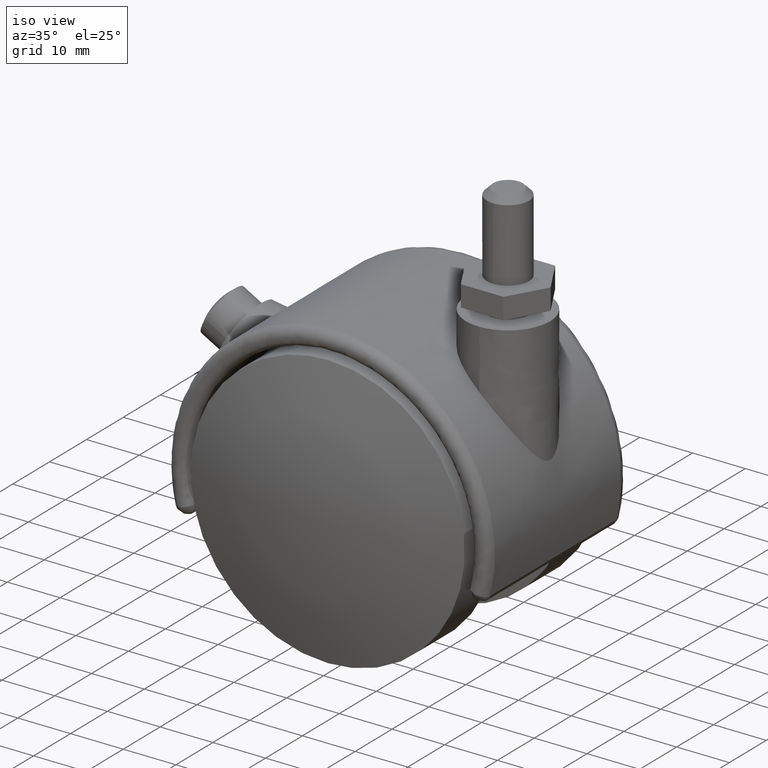
[diagram: clean part render]
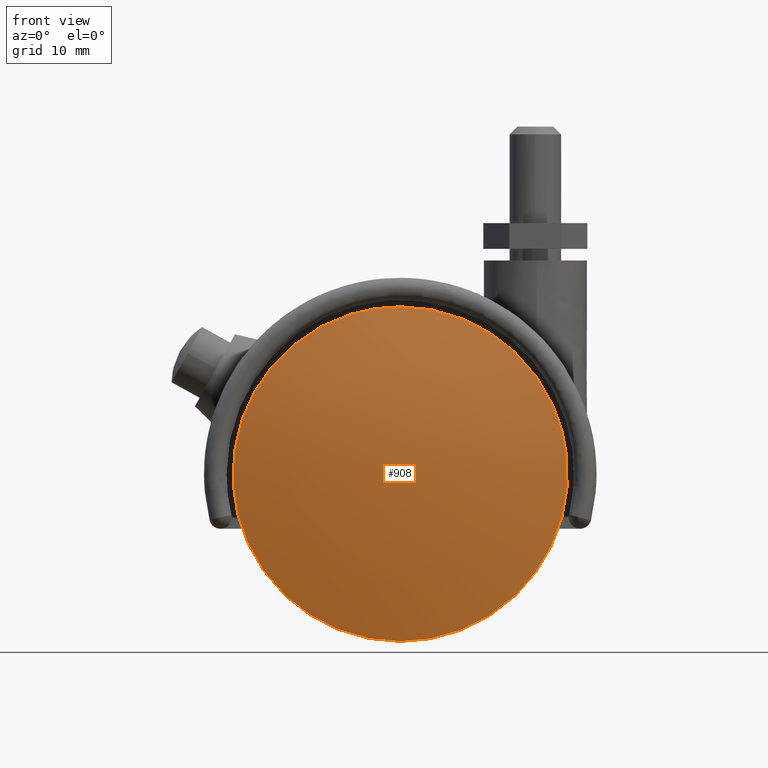
[diagram: tour spotlight — one face highlighted and labeled with its STEP entity id]
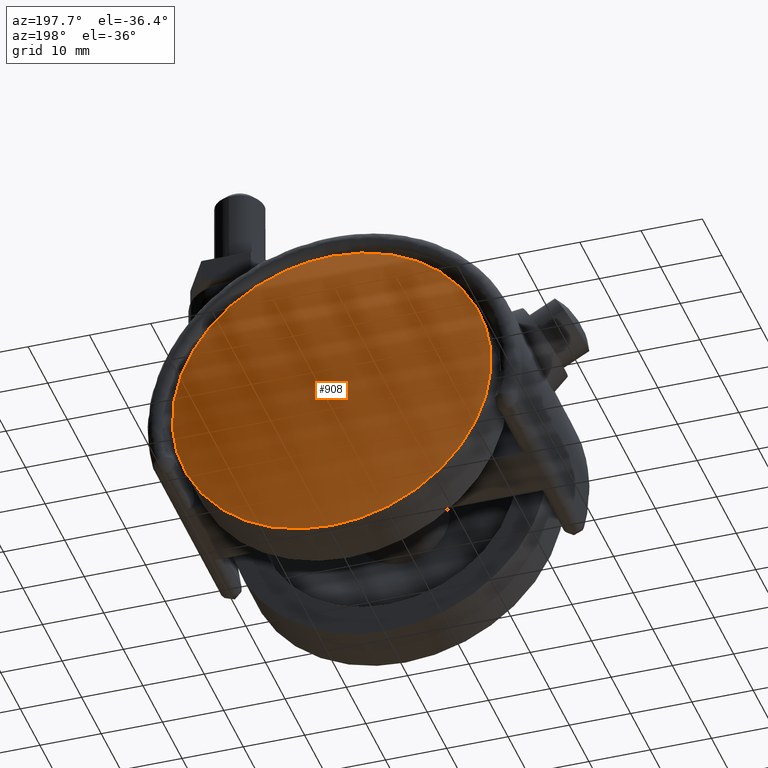
[diagram: tour spotlight — one face highlighted and labeled with its STEP entity id]
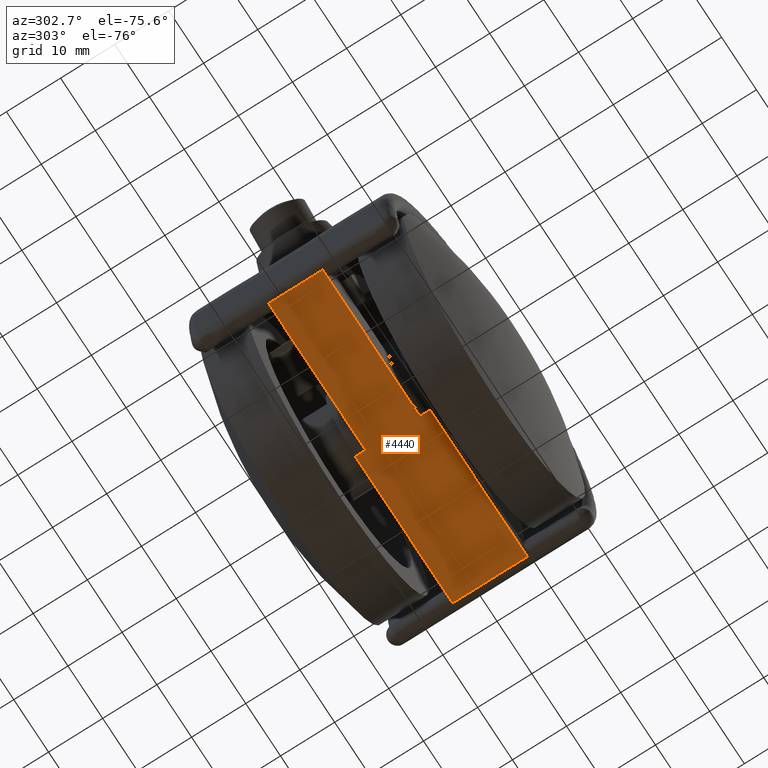
[diagram: tour spotlight — one face highlighted and labeled with its STEP entity id]
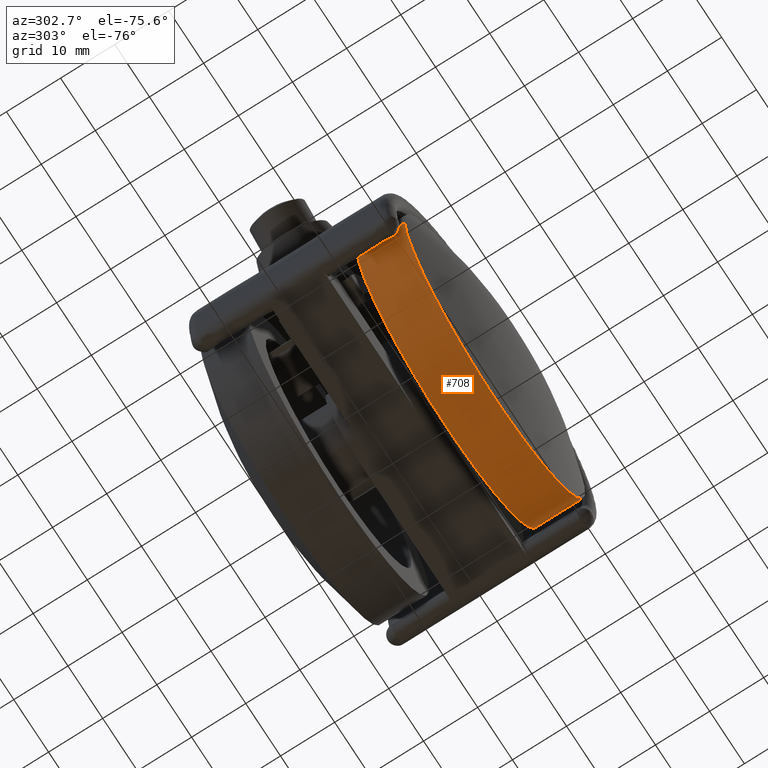
[diagram: tour spotlight — one face highlighted and labeled with its STEP entity id]
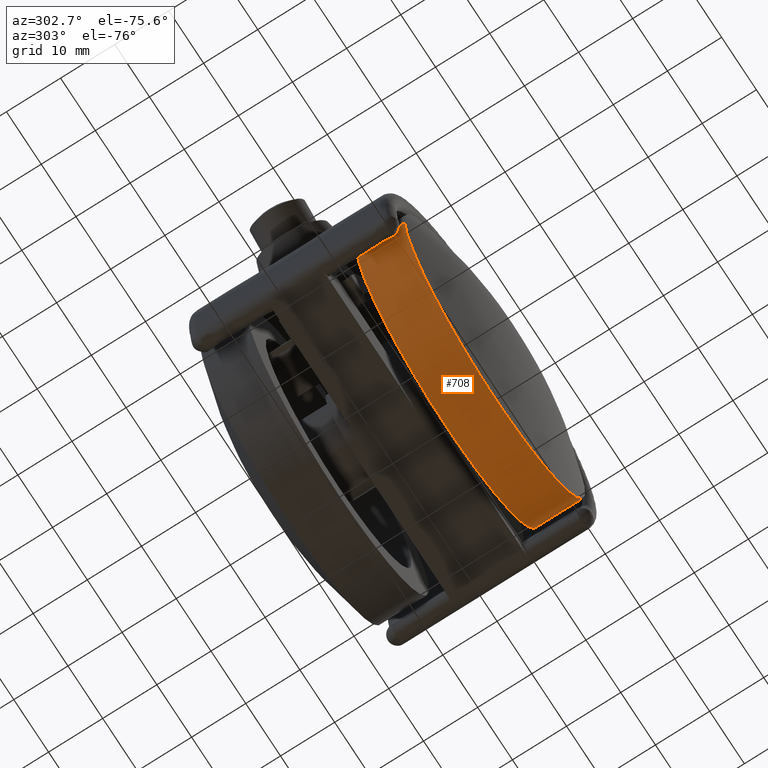
[diagram: tour spotlight — one face highlighted and labeled with its STEP entity id]
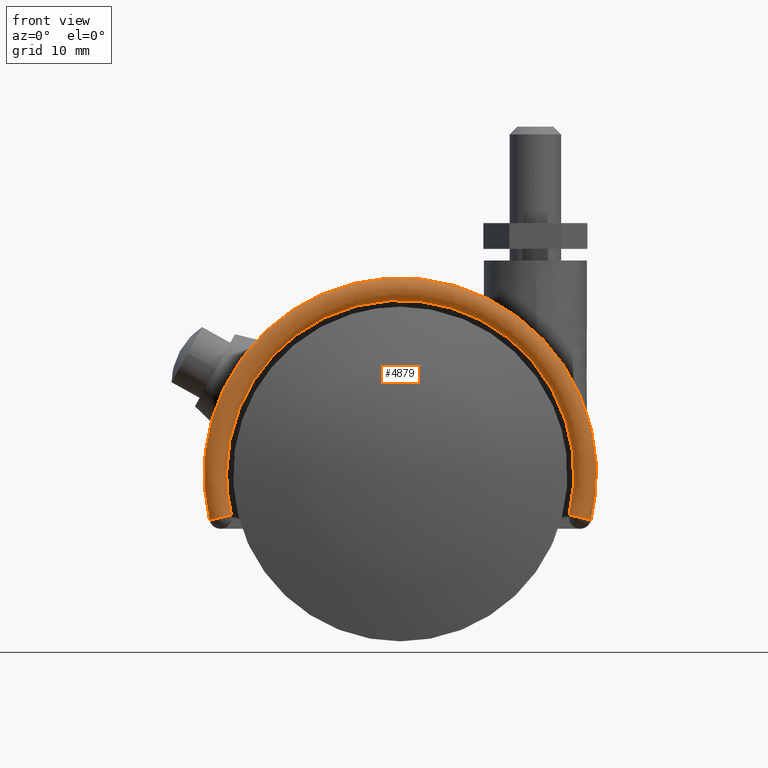
[diagram: tour spotlight — one face highlighted and labeled with its STEP entity id]
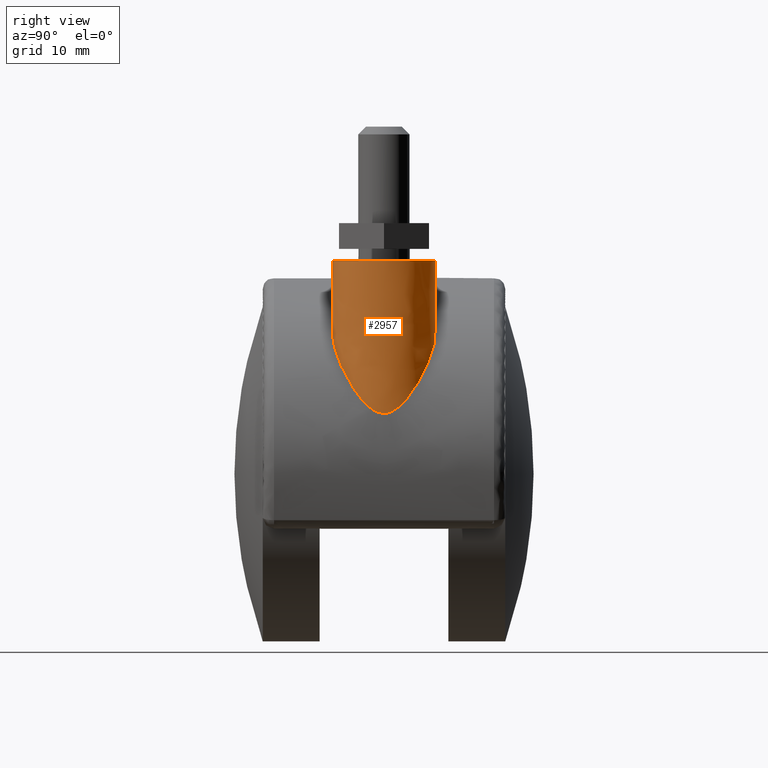
[diagram: tour spotlight — one face highlighted and labeled with its STEP entity id]
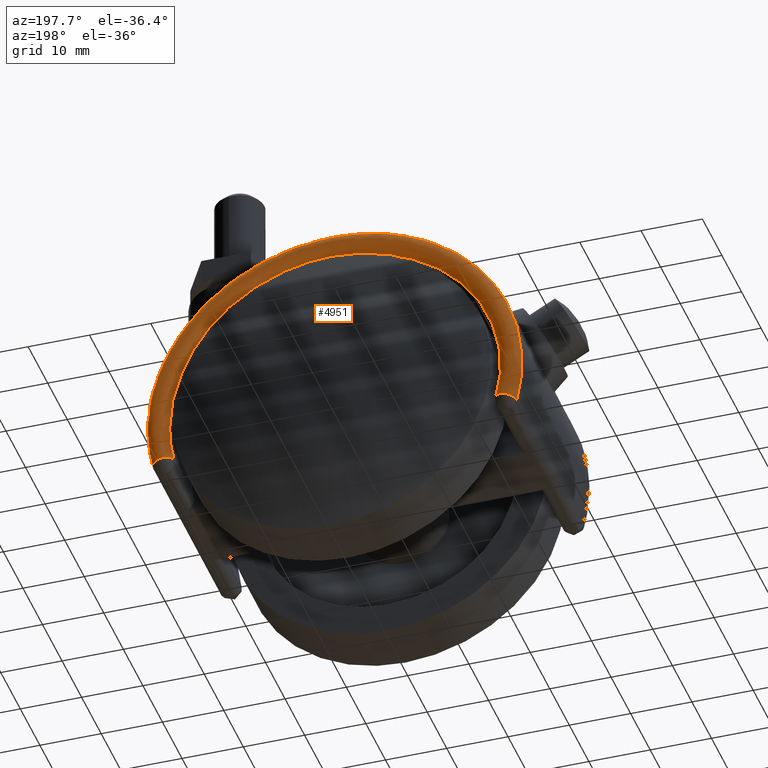
[diagram: tour spotlight — one face highlighted and labeled with its STEP entity id]
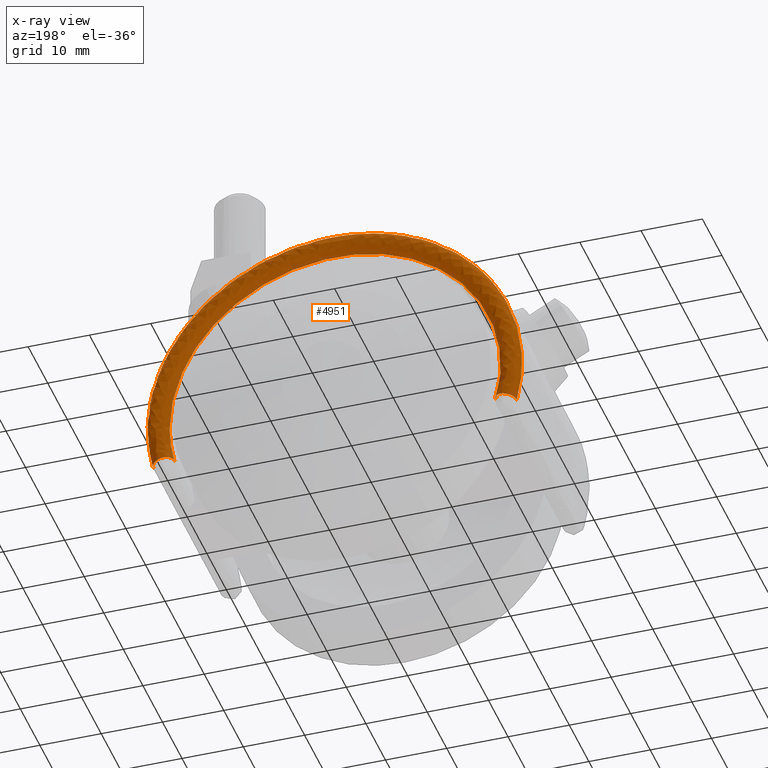
[diagram: x-ray of the same camera — body ghosted, this tour face saturated]
A machine part: a face-by-face anatomy tour. The part has 100 B-rep faces; the first image is the clean iso view, then the 8 largest visible faces are spotlighted one at a time (largest first), each with its STEP entity span.

Face 1 — front view, entity #908. In plain terms, the highlighted face is a freeform B-spline surface patch.
Definition (entity closure, byte-faithful):
#647=CARTESIAN_POINT('',(25.818248822043071,-18.850000010721249,3.068880539053032));
#648=VERTEX_POINT('',#647);
#654=CARTESIAN_POINT('',(0.0,-18.850000010721249,-26.0));
#655=VERTEX_POINT('',#654);
#656=CARTESIAN_POINT('',(25.818248822043074,-18.850000010721249,3.068880539053032));
#657=CARTESIAN_POINT('',(26.0,-18.850000010721246,1.539822279394345));
#658=CARTESIAN_POINT('',(26.0,-18.850000010721249,0.0));
#659=CARTESIAN_POINT('',(26.000000000000007,-18.850000010721253,-26.000000000000007));
#660=CARTESIAN_POINT('',(0.0,-18.850000010721249,-26.0));
#668=(BOUNDED_CURVE()B_SPLINE_CURVE(2,(#656,#657,#658,#659,#660),.UNSPECIFIED.,.F.,.U.)B_SPLINE_CURVE_WITH_KNOTS((3,2,3),(0.229562536107535,0.250000000000000,0.500000000000000),.UNSPECIFIED.)CURVE()GEOMETRIC_REPRESENTATION_ITEM()RATIONAL_B_SPLINE_CURVE((0.956026876870590,0.976056021664609,1.0,0.707106781186547,1.0))REPRESENTATION_ITEM(''));
#669=EDGE_CURVE('',#648,#655,#668,.T.);
#671=CARTESIAN_POINT('',(-25.951506237376812,-18.850000010721249,-1.587237855775190));
#672=VERTEX_POINT('',#671);
#673=CARTESIAN_POINT('',(0.0,-18.850000010721249,-26.0));
#674=CARTESIAN_POINT('',(-24.458380563490213,-18.850000010721253,-26.000000000000004));
#675=CARTESIAN_POINT('',(-25.951506237376812,-18.850000010721256,-1.587237855775190));
#683=(BOUNDED_CURVE()B_SPLINE_CURVE(2,(#673,#674,#675),.UNSPECIFIED.,.F.,.U.)B_SPLINE_CURVE_WITH_KNOTS((3,3),(0.500000000000000,0.739333122958049),.UNSPECIFIED.)CURVE()GEOMETRIC_REPRESENTATION_ITEM()RATIONAL_B_SPLINE_CURVE((1.0,0.719603804992565,0.976072386118597))REPRESENTATION_ITEM(''));
#684=EDGE_CURVE('',#655,#672,#683,.T.);
#758=CARTESIAN_POINT('',(0.0,-18.850000010721249,26.0));
#759=VERTEX_POINT('',#758);
#760=CARTESIAN_POINT('',(-25.951506237376812,-18.850000010721256,-1.587237855775190));
#761=CARTESIAN_POINT('',(-26.000000000000004,-18.850000010721249,-0.794359725810473));
#762=CARTESIAN_POINT('',(-26.0,-18.850000010721249,0.0));
#763=CARTESIAN_POINT('',(-26.000000000000007,-18.850000010721253,26.000000000000007));
#764=CARTESIAN_POINT('',(0.0,-18.850000010721249,26.0));
#772=(BOUNDED_CURVE()B_SPLINE_CURVE(2,(#760,#761,#762,#763,#764),.UNSPECIFIED.,.F.,.U.)B_SPLINE_CURVE_WITH_KNOTS((3,2,3),(0.739333122958049,0.750000000000000,1.0),.UNSPECIFIED.)CURVE()GEOMETRIC_REPRESENTATION_ITEM()RATIONAL_B_SPLINE_CURVE((0.976072386118597,0.987502976193982,1.0,0.707106781186547,1.0))REPRESENTATION_ITEM(''));
#773=EDGE_CURVE('',#672,#759,#772,.T.);
#775=CARTESIAN_POINT('',(0.0,-18.850000010721249,26.0));
#776=CARTESIAN_POINT('',(23.092546287474924,-18.850000010721256,26.000000000000004));
#777=CARTESIAN_POINT('',(25.818248822043074,-18.850000010721249,3.068880539053032));
#785=(BOUNDED_CURVE()B_SPLINE_CURVE(2,(#775,#776,#777),.UNSPECIFIED.,.F.,.U.)B_SPLINE_CURVE_WITH_KNOTS((3,3),(0.0,0.229562536107535),.UNSPECIFIED.)CURVE()GEOMETRIC_REPRESENTATION_ITEM()RATIONAL_B_SPLINE_CURVE((1.0,0.731050759521938,0.956026876870590))REPRESENTATION_ITEM(''));
#786=EDGE_CURVE('',#759,#648,#785,.T.);
#878=CARTESIAN_POINT('',(-27.509549926636168,-13.008914040041091,-27.510158300489607));
#879=CARTESIAN_POINT('',(-14.215357172331299,-17.957877278112200,-28.431343090072335));
#880=CARTESIAN_POINT('',(14.215437443623866,-17.957877278112200,-28.431343090072343));
#881=CARTESIAN_POINT('',(27.509695201312574,-13.008859959194146,-27.510148234047154));
#882=CARTESIAN_POINT('',(-28.430756452596956,-17.958103503328051,-14.215692599468984));
#883=CARTESIAN_POINT('',(-14.707876000288090,-23.249999999999972,-14.708201265049651));
#884=CARTESIAN_POINT('',(14.707959052736440,-23.249999999999972,-14.708201265049651));
#885=CARTESIAN_POINT('',(28.430906243680802,-17.958045739849460,-14.215687223510884));
#886=CARTESIAN_POINT('',(-28.430756452596956,-17.958103503328051,14.215694394626166));
#887=CARTESIAN_POINT('',(-14.707876000288090,-23.249999999999972,14.708203122400811));
#888=CARTESIAN_POINT('',(14.707959052736440,-23.249999999999972,14.708203122400811));
#889=CARTESIAN_POINT('',(28.430906243680802,-17.958045739849460,14.215689018667387));
#890=CARTESIAN_POINT('',(-27.509549701514885,-13.008912830575197,27.510161549345181));
#891=CARTESIAN_POINT('',(-14.215357052106201,-17.957875986291608,28.431346439925839));
#892=CARTESIAN_POINT('',(14.215437323398092,-17.957875986291608,28.431346439925850));
#893=CARTESIAN_POINT('',(27.509694976190186,-13.008858749729136,27.510151482901620));
#901=(BOUNDED_SURFACE()B_SPLINE_SURFACE(2,2,((#878,#882,#886,#890),(#879,#883,#887,#891),(#880,#884,#888,#892),(#881,#885,#889,#893)),.UNSPECIFIED.,.F.,.F.,.U.)B_SPLINE_SURFACE_WITH_KNOTS((3,1,3),(3,1,3),(14.714415427684781,42.997826829478043,71.281397942066192),(14.713789939880369,42.997826829478043,71.281867290782927),.UNSPECIFIED.)GEOMETRIC_REPRESENTATION_ITEM()RATIONAL_B_SPLINE_SURFACE(((1.069292375884866,1.034645421750261,1.034645421750261,1.069292384635299),(1.034646954134605,1.0,1.0,1.034646962885038),(1.034646954134605,1.0,1.0,1.034646962885038),(1.069292767157573,1.034645813022969,1.034645813022969,1.069292775908006)))REPRESENTATION_ITEM('')SURFACE());
#902=ORIENTED_EDGE('',*,*,#773,.F.);
#903=ORIENTED_EDGE('',*,*,#684,.F.);
#904=ORIENTED_EDGE('',*,*,#669,.F.);
#905=ORIENTED_EDGE('',*,*,#786,.F.);
#906=EDGE_LOOP('',(#902,#903,#904,#905));
#907=FACE_OUTER_BOUND('',#906,.T.);
#908=ADVANCED_FACE('',(#907),#901,.T.);

Face 2 — auxiliary view, entity #908. In plain terms, the highlighted face is a freeform B-spline surface patch.
Definition (entity closure, byte-faithful):
#647=CARTESIAN_POINT('',(25.818248822043071,-18.850000010721249,3.068880539053032));
#648=VERTEX_POINT('',#647);
#654=CARTESIAN_POINT('',(0.0,-18.850000010721249,-26.0));
#655=VERTEX_POINT('',#654);
#656=CARTESIAN_POINT('',(25.818248822043074,-18.850000010721249,3.068880539053032));
#657=CARTESIAN_POINT('',(26.0,-18.850000010721246,1.539822279394345));
#658=CARTESIAN_POINT('',(26.0,-18.850000010721249,0.0));
#659=CARTESIAN_POINT('',(26.000000000000007,-18.850000010721253,-26.000000000000007));
#660=CARTESIAN_POINT('',(0.0,-18.850000010721249,-26.0));
#668=(BOUNDED_CURVE()B_SPLINE_CURVE(2,(#656,#657,#658,#659,#660),.UNSPECIFIED.,.F.,.U.)B_SPLINE_CURVE_WITH_KNOTS((3,2,3),(0.229562536107535,0.250000000000000,0.500000000000000),.UNSPECIFIED.)CURVE()GEOMETRIC_REPRESENTATION_ITEM()RATIONAL_B_SPLINE_CURVE((0.956026876870590,0.976056021664609,1.0,0.707106781186547,1.0))REPRESENTATION_ITEM(''));
#669=EDGE_CURVE('',#648,#655,#668,.T.);
#671=CARTESIAN_POINT('',(-25.951506237376812,-18.850000010721249,-1.587237855775190));
#672=VERTEX_POINT('',#671);
#673=CARTESIAN_POINT('',(0.0,-18.850000010721249,-26.0));
#674=CARTESIAN_POINT('',(-24.458380563490213,-18.850000010721253,-26.000000000000004));
#675=CARTESIAN_POINT('',(-25.951506237376812,-18.850000010721256,-1.587237855775190));
#683=(BOUNDED_CURVE()B_SPLINE_CURVE(2,(#673,#674,#675),.UNSPECIFIED.,.F.,.U.)B_SPLINE_CURVE_WITH_KNOTS((3,3),(0.500000000000000,0.739333122958049),.UNSPECIFIED.)CURVE()GEOMETRIC_REPRESENTATION_ITEM()RATIONAL_B_SPLINE_CURVE((1.0,0.719603804992565,0.976072386118597))REPRESENTATION_ITEM(''));
#684=EDGE_CURVE('',#655,#672,#683,.T.);
#758=CARTESIAN_POINT('',(0.0,-18.850000010721249,26.0));
#759=VERTEX_POINT('',#758);
#760=CARTESIAN_POINT('',(-25.951506237376812,-18.850000010721256,-1.587237855775190));
#761=CARTESIAN_POINT('',(-26.000000000000004,-18.850000010721249,-0.794359725810473));
#762=CARTESIAN_POINT('',(-26.0,-18.850000010721249,0.0));
#763=CARTESIAN_POINT('',(-26.000000000000007,-18.850000010721253,26.000000000000007));
#764=CARTESIAN_POINT('',(0.0,-18.850000010721249,26.0));
#772=(BOUNDED_CURVE()B_SPLINE_CURVE(2,(#760,#761,#762,#763,#764),.UNSPECIFIED.,.F.,.U.)B_SPLINE_CURVE_WITH_KNOTS((3,2,3),(0.739333122958049,0.750000000000000,1.0),.UNSPECIFIED.)CURVE()GEOMETRIC_REPRESENTATION_ITEM()RATIONAL_B_SPLINE_CURVE((0.976072386118597,0.987502976193982,1.0,0.707106781186547,1.0))REPRESENTATION_ITEM(''));
#773=EDGE_CURVE('',#672,#759,#772,.T.);
#775=CARTESIAN_POINT('',(0.0,-18.850000010721249,26.0));
#776=CARTESIAN_POINT('',(23.092546287474924,-18.850000010721256,26.000000000000004));
#777=CARTESIAN_POINT('',(25.818248822043074,-18.850000010721249,3.068880539053032));
#785=(BOUNDED_CURVE()B_SPLINE_CURVE(2,(#775,#776,#777),.UNSPECIFIED.,.F.,.U.)B_SPLINE_CURVE_WITH_KNOTS((3,3),(0.0,0.229562536107535),.UNSPECIFIED.)CURVE()GEOMETRIC_REPRESENTATION_ITEM()RATIONAL_B_SPLINE_CURVE((1.0,0.731050759521938,0.956026876870590))REPRESENTATION_ITEM(''));
#786=EDGE_CURVE('',#759,#648,#785,.T.);
#878=CARTESIAN_POINT('',(-27.509549926636168,-13.008914040041091,-27.510158300489607));
#879=CARTESIAN_POINT('',(-14.215357172331299,-17.957877278112200,-28.431343090072335));
#880=CARTESIAN_POINT('',(14.215437443623866,-17.957877278112200,-28.431343090072343));
#881=CARTESIAN_POINT('',(27.509695201312574,-13.008859959194146,-27.510148234047154));
#882=CARTESIAN_POINT('',(-28.430756452596956,-17.958103503328051,-14.215692599468984));
#883=CARTESIAN_POINT('',(-14.707876000288090,-23.249999999999972,-14.708201265049651));
#884=CARTESIAN_POINT('',(14.707959052736440,-23.249999999999972,-14.708201265049651));
#885=CARTESIAN_POINT('',(28.430906243680802,-17.958045739849460,-14.215687223510884));
#886=CARTESIAN_POINT('',(-28.430756452596956,-17.958103503328051,14.215694394626166));
#887=CARTESIAN_POINT('',(-14.707876000288090,-23.249999999999972,14.708203122400811));
#888=CARTESIAN_POINT('',(14.707959052736440,-23.249999999999972,14.708203122400811));
#889=CARTESIAN_POINT('',(28.430906243680802,-17.958045739849460,14.215689018667387));
#890=CARTESIAN_POINT('',(-27.509549701514885,-13.008912830575197,27.510161549345181));
#891=CARTESIAN_POINT('',(-14.215357052106201,-17.957875986291608,28.431346439925839));
#892=CARTESIAN_POINT('',(14.215437323398092,-17.957875986291608,28.431346439925850));
#893=CARTESIAN_POINT('',(27.509694976190186,-13.008858749729136,27.510151482901620));
#901=(BOUNDED_SURFACE()B_SPLINE_SURFACE(2,2,((#878,#882,#886,#890),(#879,#883,#887,#891),(#880,#884,#888,#892),(#881,#885,#889,#893)),.UNSPECIFIED.,.F.,.F.,.U.)B_SPLINE_SURFACE_WITH_KNOTS((3,1,3),(3,1,3),(14.714415427684781,42.997826829478043,71.281397942066192),(14.713789939880369,42.997826829478043,71.281867290782927),.UNSPECIFIED.)GEOMETRIC_REPRESENTATION_ITEM()RATIONAL_B_SPLINE_SURFACE(((1.069292375884866,1.034645421750261,1.034645421750261,1.069292384635299),(1.034646954134605,1.0,1.0,1.034646962885038),(1.034646954134605,1.0,1.0,1.034646962885038),(1.069292767157573,1.034645813022969,1.034645813022969,1.069292775908006)))REPRESENTATION_ITEM('')SURFACE());
#902=ORIENTED_EDGE('',*,*,#773,.F.);
#903=ORIENTED_EDGE('',*,*,#684,.F.);
#904=ORIENTED_EDGE('',*,*,#669,.F.);
#905=ORIENTED_EDGE('',*,*,#786,.F.);
#906=EDGE_LOOP('',(#902,#903,#904,#905));
#907=FACE_OUTER_BOUND('',#906,.T.);
#908=ADVANCED_FACE('',(#907),#901,.T.);

Face 3 — auxiliary view, entity #4440. In plain terms, the highlighted face is a freeform B-spline surface patch.
Definition (entity closure, byte-faithful):
#4228=CARTESIAN_POINT('',(-27.946377224964252,-5.0,-8.500000000000000));
#4229=VERTEX_POINT('',#4228);
#4245=CARTESIAN_POINT('',(0.0,-5.0,-8.500000000000000));
#4246=VERTEX_POINT('',#4245);
#4247=CARTESIAN_POINT('',(-27.946377224964252,-5.0,-8.500000000000000));
#4248=CARTESIAN_POINT('',(0.0,-5.0,-8.500000000000000));
#4249=QUASI_UNIFORM_CURVE('',1,(#4247,#4248),.UNSPECIFIED.,.F.,.U.);
#4250=EDGE_CURVE('',#4229,#4246,#4249,.T.);
#4291=CARTESIAN_POINT('',(0.0,5.0,-8.500000000000000));
#4292=VERTEX_POINT('',#4291);
#4306=CARTESIAN_POINT('',(-27.946377224964252,5.0,-8.500000000000000));
#4307=VERTEX_POINT('',#4306);
#4308=CARTESIAN_POINT('',(-27.946377224964252,5.0,-8.500000000000000));
#4309=CARTESIAN_POINT('',(0.0,5.0,-8.500000000000000));
#4310=QUASI_UNIFORM_CURVE('',1,(#4308,#4309),.UNSPECIFIED.,.F.,.U.);
#4311=EDGE_CURVE('',#4307,#4292,#4310,.T.);
#4393=CARTESIAN_POINT('',(30.738219676725990,-7.589310102797450,-8.500000000000000));
#4394=CARTESIAN_POINT('',(-30.738221675606649,-7.589310102797450,-8.500000000000000));
#4395=CARTESIAN_POINT('',(30.738219676725990,7.589310349560680,-8.500000000000000));
#4396=CARTESIAN_POINT('',(-30.738221675606649,7.589310349560680,-8.500000000000000));
#4397=B_SPLINE_SURFACE_WITH_KNOTS('',1,1,((#4393,#4395),(#4394,#4396)),.UNSPECIFIED.,.F.,.F.,.U.,(2,2),(2,2),(0.0,61.476441352332643),(0.0,15.178620452358130),.UNSPECIFIED.);
#4398=CARTESIAN_POINT('',(0.0,-6.900000000000000,-8.500000000000000));
#4399=VERTEX_POINT('',#4398);
#4400=CARTESIAN_POINT('',(27.946377224964252,-6.900000000000000,-8.500000000000000));
#4401=VERTEX_POINT('',#4400);
#4402=CARTESIAN_POINT('',(0.0,-6.900000000000000,-8.500000000000000));
#4403=CARTESIAN_POINT('',(27.946377224964252,-6.900000000000000,-8.500000000000000));
#4404=QUASI_UNIFORM_CURVE('',1,(#4402,#4403),.UNSPECIFIED.,.F.,.U.);
#4405=EDGE_CURVE('',#4399,#4401,#4404,.T.);
#4406=ORIENTED_EDGE('',*,*,#4405,.F.);
#4407=CARTESIAN_POINT('',(0.0,-5.0,-8.500000000000000));
#4408=CARTESIAN_POINT('',(0.0,-6.900000000000000,-8.500000000000000));
#4409=QUASI_UNIFORM_CURVE('',1,(#4407,#4408),.UNSPECIFIED.,.F.,.U.);
#4410=EDGE_CURVE('',#4246,#4399,#4409,.T.);
#4411=ORIENTED_EDGE('',*,*,#4410,.F.);
#4412=ORIENTED_EDGE('',*,*,#4250,.F.);
#4413=CARTESIAN_POINT('',(-27.946377224964252,5.0,-8.500000000000000));
#4414=CARTESIAN_POINT('',(-27.946377224964252,-5.0,-8.500000000000000));
#4415=QUASI_UNIFORM_CURVE('',1,(#4413,#4414),.UNSPECIFIED.,.F.,.U.);
#4416=EDGE_CURVE('',#4307,#4229,#4415,.T.);
#4417=ORIENTED_EDGE('',*,*,#4416,.F.);
#4418=ORIENTED_EDGE('',*,*,#4311,.T.);
#4419=CARTESIAN_POINT('',(0.0,6.900000000000000,-8.500000000000000));
#4420=VERTEX_POINT('',#4419);
#4421=CARTESIAN_POINT('',(0.0,6.900000000000000,-8.500000000000000));
#4422=CARTESIAN_POINT('',(0.0,5.0,-8.500000000000000));
#4423=QUASI_UNIFORM_CURVE('',1,(#4421,#4422),.UNSPECIFIED.,.F.,.U.);
#4424=EDGE_CURVE('',#4420,#4292,#4423,.T.);
#4425=ORIENTED_EDGE('',*,*,#4424,.F.);
#4426=CARTESIAN_POINT('',(27.946377224964252,6.900000000000000,-8.500000000000000));
#4427=VERTEX_POINT('',#4426);
#4428=CARTESIAN_POINT('',(0.0,6.900000000000000,-8.500000000000000));
#4429=CARTESIAN_POINT('',(27.946377224964252,6.900000000000000,-8.500000000000000));
#4430=QUASI_UNIFORM_CURVE('',1,(#4428,#4429),.UNSPECIFIED.,.F.,.U.);
#4431=EDGE_CURVE('',#4420,#4427,#4430,.T.);
#4432=ORIENTED_EDGE('',*,*,#4431,.T.);
#4433=CARTESIAN_POINT('',(27.946377224964252,6.900000000000000,-8.500000000000000));
#4434=CARTESIAN_POINT('',(27.946377224964252,-6.900000000000000,-8.500000000000000));
#4435=QUASI_UNIFORM_CURVE('',1,(#4433,#4434),.UNSPECIFIED.,.F.,.U.);
#4436=EDGE_CURVE('',#4427,#4401,#4435,.T.);
#4437=ORIENTED_EDGE('',*,*,#4436,.T.);
#4438=EDGE_LOOP('',(#4406,#4411,#4412,#4417,#4418,#4425,#4432,#4437));
#4439=FACE_OUTER_BOUND('',#4438,.T.);
#4440=ADVANCED_FACE('',(#4439),#4397,.T.);

Face 4 — auxiliary view, entity #708. In plain terms, the highlighted face is a freeform B-spline surface patch.
Definition (entity closure, byte-faithful):
#606=CARTESIAN_POINT('',(25.818247685455319,-19.071250010989285,3.068890101075720));
#607=CARTESIAN_POINT('',(25.906078001663747,-19.071250010989292,2.329982944587419));
#608=CARTESIAN_POINT('',(25.951504758968529,-19.071250010989289,1.587262027906282));
#609=CARTESIAN_POINT('',(27.538766786874810,-19.071250010989282,-24.364242731062255));
#610=CARTESIAN_POINT('',(1.587262027906282,-19.071250010989289,-25.951504758968529));
#611=CARTESIAN_POINT('',(-24.364242731062255,-19.071250010989282,-27.538766786874810));
#612=CARTESIAN_POINT('',(-25.951504758968529,-19.071250010989289,-1.587262027906282));
#613=CARTESIAN_POINT('',(25.818247685455319,-9.773218749725269,3.068890101075720));
#614=CARTESIAN_POINT('',(25.906078001663747,-9.773218749725269,2.329982944587419));
#615=CARTESIAN_POINT('',(25.951504758968529,-9.773218749725267,1.587262027906282));
#616=CARTESIAN_POINT('',(27.538766786874810,-9.773218749725267,-24.364242731062255));
#617=CARTESIAN_POINT('',(1.587262027906282,-9.773218749725267,-25.951504758968529));
#618=CARTESIAN_POINT('',(-24.364242731062255,-9.773218749725267,-27.538766786874810));
#619=CARTESIAN_POINT('',(-25.951504758968529,-9.773218749725267,-1.587262027906282));
#627=(BOUNDED_SURFACE()B_SPLINE_SURFACE(2,1,((#606,#613),(#607,#614),(#608,#615),(#609,#616),(#610,#617),(#611,#618),(#612,#619)),.UNSPECIFIED.,.F.,.F.,.U.)B_SPLINE_SURFACE_WITH_KNOTS((3,2,2,3),(2,2),(0.0,1.723128419472078,44.801338906273962,87.879549393075834),(0.0,9.298031261264020),.UNSPECIFIED.)GEOMETRIC_REPRESENTATION_ITEM()RATIONAL_B_SPLINE_SURFACE(((0.977505800795127,0.977505800795127),(0.988284271247462,0.988284271247462),(1.0,1.0),(0.707106781186548,0.707106781186548),(1.0,1.0),(0.707106781186548,0.707106781186548),(1.0,1.0)))REPRESENTATION_ITEM('')SURFACE());
#628=CARTESIAN_POINT('',(25.818248836254870,-9.999999999999922,3.068880419489900));
#629=VERTEX_POINT('',#628);
#630=CARTESIAN_POINT('',(0.0,-10.0,-26.0));
#631=VERTEX_POINT('',#630);
#632=CARTESIAN_POINT('',(25.818248836254877,-9.999999999999922,3.068880419489899));
#633=CARTESIAN_POINT('',(25.999999999999993,-10.0,1.539822218980781));
#634=CARTESIAN_POINT('',(26.0,-10.0,0.0));
#635=CARTESIAN_POINT('',(26.000000000000007,-10.0,-26.000000000000007));
#636=CARTESIAN_POINT('',(0.0,-10.0,-26.0));
#644=(BOUNDED_CURVE()B_SPLINE_CURVE(2,(#632,#633,#634,#635,#636),.UNSPECIFIED.,.F.,.U.)B_SPLINE_CURVE_WITH_KNOTS((3,2,3),(0.229562536890182,0.250000000000000,0.500000000000000),.UNSPECIFIED.)CURVE()GEOMETRIC_REPRESENTATION_ITEM()RATIONAL_B_SPLINE_CURVE((0.956026878404610,0.976056022581536,1.0,0.707106781186547,1.0))REPRESENTATION_ITEM(''));
#645=EDGE_CURVE('',#629,#631,#644,.T.);
#646=ORIENTED_EDGE('',*,*,#645,.F.);
#647=CARTESIAN_POINT('',(25.818248822043071,-18.850000010721249,3.068880539053032));
#648=VERTEX_POINT('',#647);
#649=CARTESIAN_POINT('',(25.818248822043071,-18.850000010721249,3.068880539053032));
#650=CARTESIAN_POINT('',(25.818248836254870,-9.999999999999922,3.068880419489900));
#651=QUASI_UNIFORM_CURVE('',1,(#649,#650),.UNSPECIFIED.,.F.,.U.);
#652=EDGE_CURVE('',#648,#629,#651,.T.);
#653=ORIENTED_EDGE('',*,*,#652,.F.);
#654=CARTESIAN_POINT('',(0.0,-18.850000010721249,-26.0));
#655=VERTEX_POINT('',#654);
#656=CARTESIAN_POINT('',(25.818248822043074,-18.850000010721249,3.068880539053032));
#657=CARTESIAN_POINT('',(26.0,-18.850000010721246,1.539822279394345));
#658=CARTESIAN_POINT('',(26.0,-18.850000010721249,0.0));
#659=CARTESIAN_POINT('',(26.000000000000007,-18.850000010721253,-26.000000000000007));
#660=CARTESIAN_POINT('',(0.0,-18.850000010721249,-26.0));
#668=(BOUNDED_CURVE()B_SPLINE_CURVE(2,(#656,#657,#658,#659,#660),.UNSPECIFIED.,.F.,.U.)B_SPLINE_CURVE_WITH_KNOTS((3,2,3),(0.229562536107535,0.250000000000000,0.500000000000000),.UNSPECIFIED.)CURVE()GEOMETRIC_REPRESENTATION_ITEM()RATIONAL_B_SPLINE_CURVE((0.956026876870590,0.976056021664609,1.0,0.707106781186547,1.0))REPRESENTATION_ITEM(''));
#669=EDGE_CURVE('',#648,#655,#668,.T.);
#670=ORIENTED_EDGE('',*,*,#669,.T.);
#671=CARTESIAN_POINT('',(-25.951506237376812,-18.850000010721249,-1.587237855775190));
#672=VERTEX_POINT('',#671);
#673=CARTESIAN_POINT('',(0.0,-18.850000010721249,-26.0));
#674=CARTESIAN_POINT('',(-24.458380563490213,-18.850000010721253,-26.000000000000004));
#675=CARTESIAN_POINT('',(-25.951506237376812,-18.850000010721256,-1.587237855775190));
#683=(BOUNDED_CURVE()B_SPLINE_CURVE(2,(#673,#674,#675),.UNSPECIFIED.,.F.,.U.)B_SPLINE_CURVE_WITH_KNOTS((3,3),(0.500000000000000,0.739333122958049),.UNSPECIFIED.)CURVE()GEOMETRIC_REPRESENTATION_ITEM()RATIONAL_B_SPLINE_CURVE((1.0,0.719603804992565,0.976072386118597))REPRESENTATION_ITEM(''));
#684=EDGE_CURVE('',#655,#672,#683,.T.);
#685=ORIENTED_EDGE('',*,*,#684,.T.);
#686=CARTESIAN_POINT('',(-25.951506255837991,-10.000000000000179,-1.587237553928227));
#687=VERTEX_POINT('',#686);
#688=CARTESIAN_POINT('',(-25.951506237376812,-18.850000010721249,-1.587237855775190));
#689=CARTESIAN_POINT('',(-25.951506255837991,-10.000000000000179,-1.587237553928227));
#690=QUASI_UNIFORM_CURVE('',1,(#688,#689),.UNSPECIFIED.,.F.,.U.);
#691=EDGE_CURVE('',#672,#687,#690,.T.);
#692=ORIENTED_EDGE('',*,*,#691,.T.);
#693=CARTESIAN_POINT('',(0.0,-10.0,-26.0));
#694=CARTESIAN_POINT('',(-24.458380848501903,-10.0,-25.999999999999996));
#695=CARTESIAN_POINT('',(-25.951506255837995,-10.000000000000181,-1.587237553928227));
#703=(BOUNDED_CURVE()B_SPLINE_CURVE(2,(#693,#694,#695),.UNSPECIFIED.,.F.,.U.)B_SPLINE_CURVE_WITH_KNOTS((3,3),(0.500000000000000,0.739333124964974),.UNSPECIFIED.)CURVE()GEOMETRIC_REPRESENTATION_ITEM()RATIONAL_B_SPLINE_CURVE((1.0,0.719603802641306,0.976072390419827))REPRESENTATION_ITEM(''));
#704=EDGE_CURVE('',#631,#687,#703,.T.);
#705=ORIENTED_EDGE('',*,*,#704,.F.);
#706=EDGE_LOOP('',(#646,#653,#670,#685,#692,#705));
#707=FACE_OUTER_BOUND('',#706,.T.);
#708=ADVANCED_FACE('',(#707),#627,.T.);

Face 5 — auxiliary view, entity #708. In plain terms, the highlighted face is a freeform B-spline surface patch.
Definition (entity closure, byte-faithful):
#606=CARTESIAN_POINT('',(25.818247685455319,-19.071250010989285,3.068890101075720));
#607=CARTESIAN_POINT('',(25.906078001663747,-19.071250010989292,2.329982944587419));
#608=CARTESIAN_POINT('',(25.951504758968529,-19.071250010989289,1.587262027906282));
#609=CARTESIAN_POINT('',(27.538766786874810,-19.071250010989282,-24.364242731062255));
#610=CARTESIAN_POINT('',(1.587262027906282,-19.071250010989289,-25.951504758968529));
#611=CARTESIAN_POINT('',(-24.364242731062255,-19.071250010989282,-27.538766786874810));
#612=CARTESIAN_POINT('',(-25.951504758968529,-19.071250010989289,-1.587262027906282));
#613=CARTESIAN_POINT('',(25.818247685455319,-9.773218749725269,3.068890101075720));
#614=CARTESIAN_POINT('',(25.906078001663747,-9.773218749725269,2.329982944587419));
#615=CARTESIAN_POINT('',(25.951504758968529,-9.773218749725267,1.587262027906282));
#616=CARTESIAN_POINT('',(27.538766786874810,-9.773218749725267,-24.364242731062255));
#617=CARTESIAN_POINT('',(1.587262027906282,-9.773218749725267,-25.951504758968529));
#618=CARTESIAN_POINT('',(-24.364242731062255,-9.773218749725267,-27.538766786874810));
#619=CARTESIAN_POINT('',(-25.951504758968529,-9.773218749725267,-1.587262027906282));
#627=(BOUNDED_SURFACE()B_SPLINE_SURFACE(2,1,((#606,#613),(#607,#614),(#608,#615),(#609,#616),(#610,#617),(#611,#618),(#612,#619)),.UNSPECIFIED.,.F.,.F.,.U.)B_SPLINE_SURFACE_WITH_KNOTS((3,2,2,3),(2,2),(0.0,1.723128419472078,44.801338906273962,87.879549393075834),(0.0,9.298031261264020),.UNSPECIFIED.)GEOMETRIC_REPRESENTATION_ITEM()RATIONAL_B_SPLINE_SURFACE(((0.977505800795127,0.977505800795127),(0.988284271247462,0.988284271247462),(1.0,1.0),(0.707106781186548,0.707106781186548),(1.0,1.0),(0.707106781186548,0.707106781186548),(1.0,1.0)))REPRESENTATION_ITEM('')SURFACE());
#628=CARTESIAN_POINT('',(25.818248836254870,-9.999999999999922,3.068880419489900));
#629=VERTEX_POINT('',#628);
#630=CARTESIAN_POINT('',(0.0,-10.0,-26.0));
#631=VERTEX_POINT('',#630);
#632=CARTESIAN_POINT('',(25.818248836254877,-9.999999999999922,3.068880419489899));
#633=CARTESIAN_POINT('',(25.999999999999993,-10.0,1.539822218980781));
#634=CARTESIAN_POINT('',(26.0,-10.0,0.0));
#635=CARTESIAN_POINT('',(26.000000000000007,-10.0,-26.000000000000007));
#636=CARTESIAN_POINT('',(0.0,-10.0,-26.0));
#644=(BOUNDED_CURVE()B_SPLINE_CURVE(2,(#632,#633,#634,#635,#636),.UNSPECIFIED.,.F.,.U.)B_SPLINE_CURVE_WITH_KNOTS((3,2,3),(0.229562536890182,0.250000000000000,0.500000000000000),.UNSPECIFIED.)CURVE()GEOMETRIC_REPRESENTATION_ITEM()RATIONAL_B_SPLINE_CURVE((0.956026878404610,0.976056022581536,1.0,0.707106781186547,1.0))REPRESENTATION_ITEM(''));
#645=EDGE_CURVE('',#629,#631,#644,.T.);
#646=ORIENTED_EDGE('',*,*,#645,.F.);
#647=CARTESIAN_POINT('',(25.818248822043071,-18.850000010721249,3.068880539053032));
#648=VERTEX_POINT('',#647);
#649=CARTESIAN_POINT('',(25.818248822043071,-18.850000010721249,3.068880539053032));
#650=CARTESIAN_POINT('',(25.818248836254870,-9.999999999999922,3.068880419489900));
#651=QUASI_UNIFORM_CURVE('',1,(#649,#650),.UNSPECIFIED.,.F.,.U.);
#652=EDGE_CURVE('',#648,#629,#651,.T.);
#653=ORIENTED_EDGE('',*,*,#652,.F.);
#654=CARTESIAN_POINT('',(0.0,-18.850000010721249,-26.0));
#655=VERTEX_POINT('',#654);
#656=CARTESIAN_POINT('',(25.818248822043074,-18.850000010721249,3.068880539053032));
#657=CARTESIAN_POINT('',(26.0,-18.850000010721246,1.539822279394345));
#658=CARTESIAN_POINT('',(26.0,-18.850000010721249,0.0));
#659=CARTESIAN_POINT('',(26.000000000000007,-18.850000010721253,-26.000000000000007));
#660=CARTESIAN_POINT('',(0.0,-18.850000010721249,-26.0));
#668=(BOUNDED_CURVE()B_SPLINE_CURVE(2,(#656,#657,#658,#659,#660),.UNSPECIFIED.,.F.,.U.)B_SPLINE_CURVE_WITH_KNOTS((3,2,3),(0.229562536107535,0.250000000000000,0.500000000000000),.UNSPECIFIED.)CURVE()GEOMETRIC_REPRESENTATION_ITEM()RATIONAL_B_SPLINE_CURVE((0.956026876870590,0.976056021664609,1.0,0.707106781186547,1.0))REPRESENTATION_ITEM(''));
#669=EDGE_CURVE('',#648,#655,#668,.T.);
#670=ORIENTED_EDGE('',*,*,#669,.T.);
#671=CARTESIAN_POINT('',(-25.951506237376812,-18.850000010721249,-1.587237855775190));
#672=VERTEX_POINT('',#671);
#673=CARTESIAN_POINT('',(0.0,-18.850000010721249,-26.0));
#674=CARTESIAN_POINT('',(-24.458380563490213,-18.850000010721253,-26.000000000000004));
#675=CARTESIAN_POINT('',(-25.951506237376812,-18.850000010721256,-1.587237855775190));
#683=(BOUNDED_CURVE()B_SPLINE_CURVE(2,(#673,#674,#675),.UNSPECIFIED.,.F.,.U.)B_SPLINE_CURVE_WITH_KNOTS((3,3),(0.500000000000000,0.739333122958049),.UNSPECIFIED.)CURVE()GEOMETRIC_REPRESENTATION_ITEM()RATIONAL_B_SPLINE_CURVE((1.0,0.719603804992565,0.976072386118597))REPRESENTATION_ITEM(''));
#684=EDGE_CURVE('',#655,#672,#683,.T.);
#685=ORIENTED_EDGE('',*,*,#684,.T.);
#686=CARTESIAN_POINT('',(-25.951506255837991,-10.000000000000179,-1.587237553928227));
#687=VERTEX_POINT('',#686);
#688=CARTESIAN_POINT('',(-25.951506237376812,-18.850000010721249,-1.587237855775190));
#689=CARTESIAN_POINT('',(-25.951506255837991,-10.000000000000179,-1.587237553928227));
#690=QUASI_UNIFORM_CURVE('',1,(#688,#689),.UNSPECIFIED.,.F.,.U.);
#691=EDGE_CURVE('',#672,#687,#690,.T.);
#692=ORIENTED_EDGE('',*,*,#691,.T.);
#693=CARTESIAN_POINT('',(0.0,-10.0,-26.0));
#694=CARTESIAN_POINT('',(-24.458380848501903,-10.0,-25.999999999999996));
#695=CARTESIAN_POINT('',(-25.951506255837995,-10.000000000000181,-1.587237553928227));
#703=(BOUNDED_CURVE()B_SPLINE_CURVE(2,(#693,#694,#695),.UNSPECIFIED.,.F.,.U.)B_SPLINE_CURVE_WITH_KNOTS((3,3),(0.500000000000000,0.739333124964974),.UNSPECIFIED.)CURVE()GEOMETRIC_REPRESENTATION_ITEM()RATIONAL_B_SPLINE_CURVE((1.0,0.719603802641306,0.976072390419827))REPRESENTATION_ITEM(''));
#704=EDGE_CURVE('',#631,#687,#703,.T.);
#705=ORIENTED_EDGE('',*,*,#704,.F.);
#706=EDGE_LOOP('',(#646,#653,#670,#685,#692,#705));
#707=FACE_OUTER_BOUND('',#706,.T.);
#708=ADVANCED_FACE('',(#707),#627,.T.);

Face 6 — front view, entity #4879. In plain terms, the highlighted face is a freeform B-spline surface patch.
Definition (entity closure, byte-faithful):
#4564=CARTESIAN_POINT('',(26.245293393879450,-17.100000000000001,-6.339130434782610));
#4565=VERTEX_POINT('',#4564);
#4566=CARTESIAN_POINT('',(29.647461056049000,-17.100000000000001,-7.160869565217389));
#4567=VERTEX_POINT('',#4566);
#4583=CARTESIAN_POINT('',(26.245293393879471,-17.100000000000001,-6.339130434782607));
#4584=CARTESIAN_POINT('',(26.245293393879471,-18.850000000000001,-6.339130434782606));
#4585=CARTESIAN_POINT('',(27.946377224964252,-18.850000000000001,-6.750000000000000));
#4586=CARTESIAN_POINT('',(29.647461056049032,-18.850000000000001,-7.160869565217391));
#4587=CARTESIAN_POINT('',(29.647461056049028,-17.100000000000001,-7.160869565217392));
#4595=(BOUNDED_CURVE()B_SPLINE_CURVE(2,(#4583,#4584,#4585,#4586,#4587),.UNSPECIFIED.,.F.,.U.)B_SPLINE_CURVE_WITH_KNOTS((3,2,3),(0.0,0.500000000000000,1.0),.UNSPECIFIED.)CURVE()GEOMETRIC_REPRESENTATION_ITEM()RATIONAL_B_SPLINE_CURVE((1.0,0.707106781186547,1.0,0.707106781186547,1.0))REPRESENTATION_ITEM(''));
#4596=EDGE_CURVE('',#4565,#4567,#4595,.T.);
#4702=CARTESIAN_POINT('',(-29.647461056049000,-17.100000000000001,-7.160869565217389));
#4703=VERTEX_POINT('',#4702);
#4704=CARTESIAN_POINT('',(-26.245293393879450,-17.100000000000001,-6.339130434782610));
#4705=VERTEX_POINT('',#4704);
#4721=CARTESIAN_POINT('',(-29.647461056049028,-17.100000000000001,-7.160869565217392));
#4722=CARTESIAN_POINT('',(-29.647461056049032,-18.850000000000001,-7.160869565217391));
#4723=CARTESIAN_POINT('',(-27.946377224964252,-18.850000000000001,-6.750000000000000));
#4724=CARTESIAN_POINT('',(-26.245293393879471,-18.850000000000001,-6.339130434782606));
#4725=CARTESIAN_POINT('',(-26.245293393879471,-17.100000000000001,-6.339130434782607));
#4733=(BOUNDED_CURVE()B_SPLINE_CURVE(2,(#4721,#4722,#4723,#4724,#4725),.UNSPECIFIED.,.F.,.U.)B_SPLINE_CURVE_WITH_KNOTS((3,2,3),(0.0,0.500000000000000,1.0),.UNSPECIFIED.)CURVE()GEOMETRIC_REPRESENTATION_ITEM()RATIONAL_B_SPLINE_CURVE((1.0,0.707106781186547,1.0,0.707106781186547,1.0))REPRESENTATION_ITEM(''));
#4734=EDGE_CURVE('',#4703,#4705,#4733,.T.);
#4808=CARTESIAN_POINT('',(-25.185691554705365,-16.851605150255413,-9.779470401126590));
#4809=CARTESIAN_POINT('',(-39.473844677437235,-16.851605150255409,27.017718268115608));
#4810=CARTESIAN_POINT('',(0.0,-16.851605150255413,27.017718268115608));
#4811=CARTESIAN_POINT('',(39.473844677437235,-16.851605150255409,27.017718268115608));
#4812=CARTESIAN_POINT('',(25.185691554705365,-16.851605150255413,-9.779470401126590));
#4813=CARTESIAN_POINT('',(-24.920258420872617,-18.837361050155266,-9.676404123587325));
#4814=CARTESIAN_POINT('',(-39.057828056476026,-18.837361050155270,26.732977322514046));
#4815=CARTESIAN_POINT('',(0.0,-18.837361050155266,26.732977322514053));
#4816=CARTESIAN_POINT('',(39.057828056476026,-18.837361050155270,26.732977322514046));
#4817=CARTESIAN_POINT('',(24.920258420872617,-18.837361050155266,-9.676404123587325));
#4818=CARTESIAN_POINT('',(-26.790260217185949,-18.849965456498239,-10.402515899290510));
#4819=CARTESIAN_POINT('',(-41.988704911450078,-18.849965456498239,28.739004498060265));
#4820=CARTESIAN_POINT('',(0.0,-18.849965456498239,28.739004498060272));
#4821=CARTESIAN_POINT('',(41.988704911450078,-18.849965456498239,28.739004498060265));
#4822=CARTESIAN_POINT('',(26.790260217185949,-18.849965456498239,-10.402515899290510));
#4823=CARTESIAN_POINT('',(-28.682797138259911,-18.862721756743156,-11.137377944371982));
#4824=CARTESIAN_POINT('',(-44.954901345108517,-18.862721756743149,30.769206020798681));
#4825=CARTESIAN_POINT('',(0.0,-18.862721756743156,30.769206020798681));
#4826=CARTESIAN_POINT('',(44.954901345108517,-18.862721756743149,30.769206020798681));
#4827=CARTESIAN_POINT('',(28.682797138259911,-18.862721756743156,-11.137377944371982));
#4828=CARTESIAN_POINT('',(-28.415492312924819,-16.852832187587520,-11.033584898953125));
#4829=CARTESIAN_POINT('',(-44.535951198995285,-16.852832187587524,30.482457235405022));
#4830=CARTESIAN_POINT('',(0.0,-16.852832187587520,30.482457235405011));
#4831=CARTESIAN_POINT('',(44.535951198995285,-16.852832187587524,30.482457235405022));
#4832=CARTESIAN_POINT('',(28.415492312924819,-16.852832187587520,-11.033584898953125));
#4840=(BOUNDED_SURFACE()B_SPLINE_SURFACE(2,2,((#4808,#4813,#4818,#4823,#4828),(#4809,#4814,#4819,#4824,#4829),(#4810,#4815,#4820,#4825,#4830),(#4811,#4816,#4821,#4826,#4831),(#4812,#4817,#4822,#4827,#4832)),.UNSPECIFIED.,.F.,.F.,.U.)B_SPLINE_SURFACE_WITH_KNOTS((3,2,3),(3,2,3),(0.0,64.300535283032460,128.601070566064890),(0.0,3.182820210840519,6.390598249175420),.UNSPECIFIED.)GEOMETRIC_REPRESENTATION_ITEM()RATIONAL_B_SPLINE_SURFACE(((0.987979751623804,0.653411634110615,1.0,0.650693889445690,0.993268612192045),(0.558027076611520,0.369057547391458,0.564816308931806,0.367522520881196,0.561014311316129),(0.987979751623804,0.653411634110615,1.0,0.650693889445690,0.993268612192045),(0.558027076611520,0.369057547391458,0.564816308931806,0.367522520881196,0.561014311316129),(0.987979751623804,0.653411634110615,1.0,0.650693889445690,0.993268612192045)))REPRESENTATION_ITEM('')SURFACE());
#4841=CARTESIAN_POINT('',(-29.647461056049011,-17.100000000000001,-7.160869565217417));
#4842=CARTESIAN_POINT('',(-34.573825898210522,-17.099999999999998,13.235286023945019));
#4843=CARTESIAN_POINT('',(-17.286912949105261,-17.100000000000001,25.127925515053111));
#4844=CARTESIAN_POINT('',(1.040834E-014,-17.099999999999998,37.020565006161192));
#4845=CARTESIAN_POINT('',(17.286912949105272,-17.100000000000001,25.127925515053100));
#4846=CARTESIAN_POINT('',(34.573825898210515,-17.099999999999998,13.235286023945019));
#4847=CARTESIAN_POINT('',(29.647461056049021,-17.100000000000001,-7.160869565217403));
#4855=(BOUNDED_CURVE()B_SPLINE_CURVE(2,(#4841,#4842,#4843,#4844,#4845,#4846,#4847),.UNSPECIFIED.,.F.,.U.)B_SPLINE_CURVE_WITH_KNOTS((3,2,2,3),(0.0,0.333333333333333,0.666666666666667,1.0),.UNSPECIFIED.)CURVE()GEOMETRIC_REPRESENTATION_ITEM()RATIONAL_B_SPLINE_CURVE((1.0,0.823866410329610,1.0,0.823866410329610,1.0,0.823866410329610,1.0))REPRESENTATION_ITEM(''));
#4856=EDGE_CURVE('',#4703,#4567,#4855,.T.);
#4857=ORIENTED_EDGE('',*,*,#4856,.F.);
#4858=ORIENTED_EDGE('',*,*,#4734,.T.);
#4859=CARTESIAN_POINT('',(26.245293393879461,-17.100000000000001,-6.339130434782631));
#4860=CARTESIAN_POINT('',(30.606337680383096,-17.099999999999998,11.716482709721818));
#4861=CARTESIAN_POINT('',(15.303168840191541,-17.100000000000001,22.244393078899471));
#4862=CARTESIAN_POINT('',(-6.938894E-015,-17.099999999999998,32.772303448077125));
#4863=CARTESIAN_POINT('',(-15.303168840191550,-17.100000000000001,22.244393078899460));
#4864=CARTESIAN_POINT('',(-30.606337680383071,-17.099999999999998,11.716482709721818));
#4865=CARTESIAN_POINT('',(-26.245293393879461,-17.100000000000001,-6.339130434782619));
#4873=(BOUNDED_CURVE()B_SPLINE_CURVE(2,(#4859,#4860,#4861,#4862,#4863,#4864,#4865),.UNSPECIFIED.,.F.,.U.)B_SPLINE_CURVE_WITH_KNOTS((3,2,2,3),(0.0,0.333333333333333,0.666666666666667,1.0),.UNSPECIFIED.)CURVE()GEOMETRIC_REPRESENTATION_ITEM()RATIONAL_B_SPLINE_CURVE((1.0,0.823866410329610,1.0,0.823866410329610,1.0,0.823866410329610,1.0))REPRESENTATION_ITEM(''));
#4874=EDGE_CURVE('',#4565,#4705,#4873,.T.);
#4875=ORIENTED_EDGE('',*,*,#4874,.F.);
#4876=ORIENTED_EDGE('',*,*,#4596,.T.);
#4877=EDGE_LOOP('',(#4857,#4858,#4875,#4876));
#4878=FACE_OUTER_BOUND('',#4877,.T.);
#4879=ADVANCED_FACE('',(#4878),#4840,.T.);

Face 7 — right view, entity #2957. In plain terms, the highlighted face is a freeform B-spline surface patch.
Definition (entity closure, byte-faithful):
#2643=CARTESIAN_POINT('',(21.170517451781809,-7.998182530965257,33.200000000000003));
#2644=VERTEX_POINT('',#2643);
#2662=CARTESIAN_POINT('',(20.372327234096840,7.975338669858695,33.200000000000003));
#2663=VERTEX_POINT('',#2662);
#2677=CARTESIAN_POINT('',(20.372331091017440,7.975339012096953,22.698406674391141));
#2678=VERTEX_POINT('',#2677);
#2679=CARTESIAN_POINT('',(20.372327234096840,7.975338669858695,33.200000000000003));
#2680=CARTESIAN_POINT('',(20.372331091017440,7.975339012096953,22.698406674391141));
#2681=QUASI_UNIFORM_CURVE('',1,(#2679,#2680),.UNSPECIFIED.,.F.,.U.);
#2682=EDGE_CURVE('',#2663,#2678,#2681,.T.);
#2734=CARTESIAN_POINT('',(21.170517570596040,-7.998188154073477,21.955847994155739));
#2735=VERTEX_POINT('',#2734);
#2793=CARTESIAN_POINT('',(21.170517451781809,-7.998182530965257,33.200000000000003));
#2794=CARTESIAN_POINT('',(21.170517570596040,-7.998188154073477,21.955847994155739));
#2795=QUASI_UNIFORM_CURVE('',1,(#2793,#2794),.UNSPECIFIED.,.F.,.U.);
#2796=EDGE_CURVE('',#2644,#2735,#2795,.T.);
#2801=CARTESIAN_POINT('',(20.372327234177259,7.975338669865023,33.793811463376819));
#2802=CARTESIAN_POINT('',(28.347665904042280,8.603011435687769,33.793811463376827));
#2803=CARTESIAN_POINT('',(28.975338669865032,0.627672765822746,33.793811463376819));
#2804=CARTESIAN_POINT('',(29.603011435687772,-7.347665904042277,33.793811463376827));
#2805=CARTESIAN_POINT('',(21.627672765822741,-7.975338669865023,33.793811463376819));
#2806=CARTESIAN_POINT('',(21.399421999528442,-7.993302394756411,33.793811463376827));
#2807=CARTESIAN_POINT('',(21.170517451743830,-7.998182530966067,33.793811463376827));
#2808=CARTESIAN_POINT('',(20.372327234177259,7.975338669865023,8.838884714966529));
#2809=CARTESIAN_POINT('',(28.347665904042280,8.603011435687769,8.838884714966529));
#2810=CARTESIAN_POINT('',(28.975338669865032,0.627672765822746,8.838884714966529));
#2811=CARTESIAN_POINT('',(29.603011435687772,-7.347665904042277,8.838884714966529));
#2812=CARTESIAN_POINT('',(21.627672765822741,-7.975338669865023,8.838884714966529));
#2813=CARTESIAN_POINT('',(21.399421999528442,-7.993302394756411,8.838884714966529));
#2814=CARTESIAN_POINT('',(21.170517451743830,-7.998182530966067,8.838884714966529));
#2822=(BOUNDED_SURFACE()B_SPLINE_SURFACE(2,1,((#2801,#2808),(#2802,#2809),(#2803,#2810),(#2804,#2811),(#2805,#2812),(#2806,#2813),(#2807,#2814)),.UNSPECIFIED.,.F.,.F.,.U.)B_SPLINE_SURFACE_WITH_KNOTS((3,2,2,3),(2,2),(0.0,13.254833995939039,26.509667991878072,27.039861351715629),(0.0,24.954926748410291),.UNSPECIFIED.)GEOMETRIC_REPRESENTATION_ITEM()RATIONAL_B_SPLINE_SURFACE(((1.0,1.0),(0.707106781186548,0.707106781186548),(1.0,1.0),(0.707106781186548,0.707106781186548),(1.0,1.0),(0.988284271247462,0.988284271247462),(0.977505800795127,0.977505800795127)))REPRESENTATION_ITEM('')SURFACE());
#2823=CARTESIAN_POINT('',(29.0,0.0,33.200000000000003));
#2824=VERTEX_POINT('',#2823);
#2825=CARTESIAN_POINT('',(29.0,0.0,33.200000000000003));
#2826=CARTESIAN_POINT('',(29.000000000000004,-7.831261682632346,33.200000000000010));
#2827=CARTESIAN_POINT('',(21.170517451781816,-7.998182530965257,33.200000000000010));
#2835=(BOUNDED_CURVE()B_SPLINE_CURVE(2,(#2825,#2826,#2827),.UNSPECIFIED.,.F.,.U.)B_SPLINE_CURVE_WITH_KNOTS((3,3),(0.500000000000000,0.746248196889189),.UNSPECIFIED.)CURVE()GEOMETRIC_REPRESENTATION_ITEM()RATIONAL_B_SPLINE_CURVE((1.0,0.711502291944466,0.991340907211644))REPRESENTATION_ITEM(''));
#2836=EDGE_CURVE('',#2824,#2644,#2835,.T.);
#2837=ORIENTED_EDGE('',*,*,#2836,.T.);
#2838=ORIENTED_EDGE('',*,*,#2796,.T.);
#2839=CARTESIAN_POINT('',(28.999895866510808,-0.040818194267602,9.447541464927753));
#2840=VERTEX_POINT('',#2839);
#2841=CARTESIAN_POINT('',(28.999895866510808,-0.040818194267602,9.447541464927753));
#2842=CARTESIAN_POINT('',(28.999466214408979,-0.125024985761245,9.448860311507323));
#2843=CARTESIAN_POINT('',(28.997705745496152,-0.209561128017436,9.454266917218384));
#2844=CARTESIAN_POINT('',(28.991454197050171,-0.379305719176543,9.473419918093274));
#2845=CARTESIAN_POINT('',(28.987015024879980,-0.463088870802789,9.487006303984074));
#2846=CARTESIAN_POINT('',(28.970064659284969,-0.710992778104979,9.538693229067414));
#2847=CARTESIAN_POINT('',(28.953926323659921,-0.871891599050404,9.587716465261485));
#2848=CARTESIAN_POINT('',(28.923331552824099,-1.107746051056898,9.679459219860833));
#2849=CARTESIAN_POINT('',(28.912041694407382,-1.185534532033239,9.713149823777863));
#2850=CARTESIAN_POINT('',(28.887826855472390,-1.337192275391238,9.784931984983007));
#2851=CARTESIAN_POINT('',(28.874865232686421,-1.411374722773494,9.823133995842207));
#2852=CARTESIAN_POINT('',(28.833657710783850,-1.629642223001002,9.943711528936593));
#2853=CARTESIAN_POINT('',(28.803101660287311,-1.769477290136857,10.032015601056790));
#2854=CARTESIAN_POINT('',(28.736689946539499,-2.040361091664412,10.220697288736231));
#2855=CARTESIAN_POINT('',(28.700828200058151,-2.171396421399778,10.321094023708220));
#2856=CARTESIAN_POINT('',(28.624322384137312,-2.426401598566568,10.531414394042590));
#2857=CARTESIAN_POINT('',(28.584073826983481,-2.549049295761523,10.640248567641891));
#2858=CARTESIAN_POINT('',(28.458199956339769,-2.904922855426706,10.974403051372070));
#2859=CARTESIAN_POINT('',(28.367367485436869,-3.126647320223306,11.207552820653010));
#2860=CARTESIAN_POINT('',(28.173392156563370,-3.549150549939596,11.686605684430020));
#2861=CARTESIAN_POINT('',(28.070221762861291,-3.749794647455663,11.932612459985309));
#2862=CARTESIAN_POINT('',(27.852034721621319,-4.135046907100209,12.433372493193190));
#2863=CARTESIAN_POINT('',(27.737008617205991,-4.319604242075376,12.688165276117680));
#2864=CARTESIAN_POINT('',(27.555592540315391,-4.586475677422900,13.075152555868950));
#2865=CARTESIAN_POINT('',(27.493559783683310,-4.673858919790865,13.205115626275409));
#2866=CARTESIAN_POINT('',(27.367112095094889,-4.844704085381898,13.465217552543610));
#2867=CARTESIAN_POINT('',(27.302654777020820,-4.928237472668623,13.595453176760500));
#2868=CARTESIAN_POINT('',(27.105583144384742,-5.173571513873103,13.986514550004321));
#2869=CARTESIAN_POINT('',(26.969273060727211,-5.330130634835134,14.247684951109150));
#2870=CARTESIAN_POINT('',(26.545398640022800,-5.780889120983929,15.031456428055010));
#2871=CARTESIAN_POINT('',(26.242942875101448,-6.056380979743837,15.554244844894059));
#2872=CARTESIAN_POINT('',(25.596047715978852,-6.560833574937910,16.597256531219760));
#2873=CARTESIAN_POINT('',(25.251620093372001,-6.789724648309830,17.117521711041380));
#2874=CARTESIAN_POINT('',(24.700415176599272,-7.095846833481302,17.895263442960399));
#2875=CARTESIAN_POINT('',(24.510904108248141,-7.191641958206220,18.154080016155419));
#2876=CARTESIAN_POINT('',(24.217414787207261,-7.325280557553059,18.541657912420330));
#2877=CARTESIAN_POINT('',(24.118028007192891,-7.368146676741992,18.670759027235739));
#2878=CARTESIAN_POINT('',(23.917272475388572,-7.449912960469409,18.927244777650500));
#2879=CARTESIAN_POINT('',(23.815763562203479,-7.488879464101702,19.054816771505848));
#2880=CARTESIAN_POINT('',(23.302512003680711,-7.673908433252922,19.689316406671889));
#2881=CARTESIAN_POINT('',(22.873693819556511,-7.790796551579367,20.186160793838830));
#2882=CARTESIAN_POINT('',(22.023188638046641,-7.944828472284153,21.108807958559350));
#2883=CARTESIAN_POINT('',(21.605229193750841,-7.988978886596056,21.536694956322378));
#2884=CARTESIAN_POINT('',(21.170517570596040,-7.998188154073477,21.955847994155739));
#2885=B_SPLINE_CURVE_WITH_KNOTS('',3,(#2841,#2842,#2843,#2844,#2845,#2846,#2847,#2848,#2849,#2850,#2851,#2852,#2853,#2854,#2855,#2856,#2857,#2858,#2859,#2860,#2861,#2862,#2863,#2864,#2865,#2866,#2867,#2868,#2869,#2870,#2871,#2872,#2873,#2874,#2875,#2876,#2877,#2878,#2879,#2880,#2881,#2882,#2883,#2884),.UNSPECIFIED.,.F.,.U.,(4,2,2,2,2,2,2,2,2,2,2,2,2,2,2,2,2,2,2,2,2,4),(0.499999999999988,0.503906249999988,0.507812499999988,0.515624999999988,0.519531249999988,0.523437499999988,0.531249999999988,0.539062499999988,0.546874999999988,0.562499999999988,0.578124999999989,0.593749999999989,0.601562499999989,0.609374999999989,0.624999999999989,0.656249999999989,0.687499999999989,0.703124999999989,0.710937499999989,0.718749999999989,0.749999999999990,0.778072405911495),.UNSPECIFIED.);
#2886=EDGE_CURVE('',#2840,#2735,#2885,.T.);
#2887=ORIENTED_EDGE('',*,*,#2886,.F.);
#2888=CARTESIAN_POINT('',(20.372331091017440,7.975339012096953,22.698406674391141));
#2889=CARTESIAN_POINT('',(20.476814394860860,7.983562123295528,22.604630629446088));
#2890=CARTESIAN_POINT('',(20.580907080667490,7.989688728667493,22.509902617954239));
#2891=CARTESIAN_POINT('',(20.808398575754399,7.998664615754803,22.299965976334441));
#2892=CARTESIAN_POINT('',(20.931859134815561,8.000643388904575,22.184124391489799));
#2893=CARTESIAN_POINT('',(21.543070492582519,7.996509522895173,21.600981826078868));
#2894=CARTESIAN_POINT('',(22.010563826394218,7.948979957824675,21.123989728706562));
#2895=CARTESIAN_POINT('',(22.906418467171250,7.782871204991352,20.149041881917348));
#2896=CARTESIAN_POINT('',(23.334753686592681,7.664155590043879,19.651089642469032));
#2897=CARTESIAN_POINT('',(23.949518855898880,7.439617401009746,18.888536715977541));
#2898=CARTESIAN_POINT('',(24.149807470361129,7.356977698999828,18.631748963825750));
#2899=CARTESIAN_POINT('',(24.443417447757142,7.221804288386003,18.242681655423549));
#2900=CARTESIAN_POINT('',(24.539962741718231,7.174955753647552,18.112588053615060));
#2901=CARTESIAN_POINT('',(24.729808213643199,7.078125214873129,17.852512768600850));
#2902=CARTESIAN_POINT('',(24.823213715242360,7.028095187000134,17.722391950707841));
#2903=CARTESIAN_POINT('',(25.282885525258799,6.770131609125193,17.071376893470109));
#2904=CARTESIAN_POINT('',(25.627173824347420,6.538983262560786,16.549187609240761));
#2905=CARTESIAN_POINT('',(26.273195011555309,6.030128941236733,15.503125762867310));
#2906=CARTESIAN_POINT('',(26.574915101893009,5.752493431060155,14.979209381625500));
#2907=CARTESIAN_POINT('',(26.997332067371850,5.298556812022928,14.194440738368931));
#2908=CARTESIAN_POINT('',(27.133096739533588,5.140943684048899,13.933054765956889));
#2909=CARTESIAN_POINT('',(27.394656612243800,4.811709268906970,13.411478669909600));
#2910=CARTESIAN_POINT('',(27.520528491662599,4.639995789144180,13.151118811368280));
#2911=CARTESIAN_POINT('',(27.761946750676991,4.280529278262414,12.633516691286459));
#2912=CARTESIAN_POINT('',(27.876833384317958,4.093798948823909,12.377691081905130));
#2913=CARTESIAN_POINT('',(28.094863923116971,3.703098085259662,11.874498455323129));
#2914=CARTESIAN_POINT('',(28.198018857548529,3.499190842336803,11.627086494192451));
#2915=CARTESIAN_POINT('',(28.343495568804279,3.176006322280874,11.265569639154140));
#2916=CARTESIAN_POINT('',(28.390390401362041,3.065446992616508,11.146798759158710));
#2917=CARTESIAN_POINT('',(28.480324761223990,2.838939642872145,10.914966737159270));
#2918=CARTESIAN_POINT('',(28.523438293811591,2.722838455020216,10.801721348187980));
#2919=CARTESIAN_POINT('',(28.605720469903041,2.483745245447467,10.581893969502930));
#2920=CARTESIAN_POINT('',(28.644891569266768,2.360761302963278,10.475303362454101));
#2921=CARTESIAN_POINT('',(28.718904750579931,2.106198421008185,10.270652880446541));
#2922=CARTESIAN_POINT('',(28.753751664361118,1.974634738169228,10.172576804782249));
#2923=CARTESIAN_POINT('',(28.802297897142509,1.768927640474581,10.033942519912490));
#2924=CARTESIAN_POINT('',(28.817856910993399,1.698957086924375,9.989152862646066));
#2925=CARTESIAN_POINT('',(28.847608145763150,1.555759908177278,9.902906615054691));
#2926=CARTESIAN_POINT('',(28.861778567918879,1.482596819628976,9.861511324645809));
#2927=CARTESIAN_POINT('',(28.901518192590721,1.260415794472493,9.744690556923846));
#2928=CARTESIAN_POINT('',(28.924514006425149,1.107890082066425,9.676056274873904));
#2929=CARTESIAN_POINT('',(28.952866692780152,0.870772871914611,9.590745333515756));
#2930=CARTESIAN_POINT('',(28.961290072524069,0.790340005134364,9.565260546985297));
#2931=CARTESIAN_POINT('',(28.975870241399470,0.626315699270510,9.521001960369782));
#2932=CARTESIAN_POINT('',(28.981951491652701,0.543459319221662,9.502458468690671));
#2933=CARTESIAN_POINT('',(28.996296208381679,0.294690538853195,9.458633497126327));
#2934=CARTESIAN_POINT('',(29.000755149230400,0.127595414520862,9.444903748324668));
#2935=CARTESIAN_POINT('',(28.999895866510808,-0.040818194267602,9.447541464927753));
#2936=B_SPLINE_CURVE_WITH_KNOTS('',3,(#2888,#2889,#2890,#2891,#2892,#2893,#2894,#2895,#2896,#2897,#2898,#2899,#2900,#2901,#2902,#2903,#2904,#2905,#2906,#2907,#2908,#2909,#2910,#2911,#2912,#2913,#2914,#2915,#2916,#2917,#2918,#2919,#2920,#2921,#2922,#2923,#2924,#2925,#2926,#2927,#2928,#2929,#2930,#2931,#2932,#2933,#2934,#2935),.UNSPECIFIED.,.F.,.U.,(4,2,2,2,2,2,2,2,2,2,2,2,2,2,2,2,2,2,2,2,2,2,2,4),(0.204394584708128,0.210937499999988,0.218749999999987,0.249999999999988,0.281249999999988,0.296874999999988,0.304687499999988,0.312499999999987,0.343749999999987,0.374999999999988,0.390624999999988,0.406249999999988,0.421874999999988,0.437499999999988,0.445312499999988,0.453124999999988,0.460937499999988,0.468749999999988,0.472656249999988,0.476562499999988,0.484374999999988,0.488281249999988,0.492187499999988,0.499999999999988),.UNSPECIFIED.);
#2937=EDGE_CURVE('',#2678,#2840,#2936,.T.);
#2938=ORIENTED_EDGE('',*,*,#2937,.F.);
#2939=ORIENTED_EDGE('',*,*,#2682,.F.);
#2940=CARTESIAN_POINT('',(20.372327234096844,7.975338669858696,33.200000000000003));
#2941=CARTESIAN_POINT('',(20.685679143857858,8.0,33.200000000000003));
#2942=CARTESIAN_POINT('',(21.0,8.0,33.200000000000003));
#2943=CARTESIAN_POINT('',(29.0,8.0,33.200000000000003));
#2944=CARTESIAN_POINT('',(29.0,0.0,33.200000000000003));
#2952=(BOUNDED_CURVE()B_SPLINE_CURVE(2,(#2940,#2941,#2942,#2943,#2944),.UNSPECIFIED.,.F.,.U.)B_SPLINE_CURVE_WITH_KNOTS((3,2,3),(0.236331300629310,0.250000000000000,0.500000000000000),.UNSPECIFIED.)CURVE()GEOMETRIC_REPRESENTATION_ITEM()RATIONAL_B_SPLINE_CURVE((0.969723356164602,0.983986122577301,1.0,0.707106781186548,1.0))REPRESENTATION_ITEM(''));
#2953=EDGE_CURVE('',#2663,#2824,#2952,.T.);
#2954=ORIENTED_EDGE('',*,*,#2953,.T.);
#2955=EDGE_LOOP('',(#2837,#2838,#2887,#2938,#2939,#2954));
#2956=FACE_OUTER_BOUND('',#2955,.T.);
#2957=ADVANCED_FACE('',(#2956),#2822,.T.);

Face 8 — auxiliary view, entity #4951. An x-ray twin of the same camera follows (body ghosted, this face saturated) — the face is partly hidden behind the body. In plain terms, the highlighted face is a freeform B-spline surface patch.
Definition (entity closure, byte-faithful):
#4633=CARTESIAN_POINT('',(26.245293393879450,17.100000000000001,-6.339130434782610));
#4634=VERTEX_POINT('',#4633);
#4635=CARTESIAN_POINT('',(29.647461056049000,17.100000000000001,-7.160869565217389));
#4636=VERTEX_POINT('',#4635);
#4652=CARTESIAN_POINT('',(29.647461056049028,17.100000000000001,-7.160869565217392));
#4653=CARTESIAN_POINT('',(29.647461056049032,18.850000000000001,-7.160869565217391));
#4654=CARTESIAN_POINT('',(27.946377224964252,18.850000000000001,-6.750000000000000));
#4655=CARTESIAN_POINT('',(26.245293393879471,18.850000000000001,-6.339130434782606));
#4656=CARTESIAN_POINT('',(26.245293393879471,17.100000000000001,-6.339130434782607));
#4664=(BOUNDED_CURVE()B_SPLINE_CURVE(2,(#4652,#4653,#4654,#4655,#4656),.UNSPECIFIED.,.F.,.U.)B_SPLINE_CURVE_WITH_KNOTS((3,2,3),(0.0,0.500000000000000,1.0),.UNSPECIFIED.)CURVE()GEOMETRIC_REPRESENTATION_ITEM()RATIONAL_B_SPLINE_CURVE((1.0,0.707106781186547,1.0,0.707106781186547,1.0))REPRESENTATION_ITEM(''));
#4665=EDGE_CURVE('',#4636,#4634,#4664,.T.);
#4771=CARTESIAN_POINT('',(-26.245293393879450,17.100000000000001,-6.339130434782610));
#4772=VERTEX_POINT('',#4771);
#4773=CARTESIAN_POINT('',(-29.647461056049000,17.100000000000001,-7.160869565217389));
#4774=VERTEX_POINT('',#4773);
#4775=CARTESIAN_POINT('',(-26.245293393879471,17.100000000000001,-6.339130434782607));
#4776=CARTESIAN_POINT('',(-26.245293393879471,18.850000000000001,-6.339130434782606));
#4777=CARTESIAN_POINT('',(-27.946377224964252,18.850000000000001,-6.750000000000000));
#4778=CARTESIAN_POINT('',(-29.647461056049032,18.850000000000001,-7.160869565217391));
#4779=CARTESIAN_POINT('',(-29.647461056049028,17.100000000000001,-7.160869565217392));
#4787=(BOUNDED_CURVE()B_SPLINE_CURVE(2,(#4775,#4776,#4777,#4778,#4779),.UNSPECIFIED.,.F.,.U.)B_SPLINE_CURVE_WITH_KNOTS((3,2,3),(0.0,0.500000000000000,1.0),.UNSPECIFIED.)CURVE()GEOMETRIC_REPRESENTATION_ITEM()RATIONAL_B_SPLINE_CURVE((1.0,0.707106781186547,1.0,0.707106781186547,1.0))REPRESENTATION_ITEM(''));
#4788=EDGE_CURVE('',#4772,#4774,#4787,.T.);
#4880=CARTESIAN_POINT('',(-28.415328710007142,16.851605150255413,-11.033521372808229));
#4881=CARTESIAN_POINT('',(-44.535694782126725,16.851605150255406,30.482281731884388));
#4882=CARTESIAN_POINT('',(0.0,16.851605150255413,30.482281731884385));
#4883=CARTESIAN_POINT('',(44.535694782126725,16.851605150255406,30.482281731884388));
#4884=CARTESIAN_POINT('',(28.415328710007142,16.851605150255413,-11.033521372808229));
#4885=CARTESIAN_POINT('',(-28.680761843839882,18.837361050155266,-11.136587650347495));
#4886=CARTESIAN_POINT('',(-44.951711403087891,18.837361050155270,30.767022677485951));
#4887=CARTESIAN_POINT('',(0.0,18.837361050155266,30.767022677485944));
#4888=CARTESIAN_POINT('',(44.951711403087891,18.837361050155270,30.767022677485951));
#4889=CARTESIAN_POINT('',(28.680761843839882,18.837361050155266,-11.136587650347495));
#4890=CARTESIAN_POINT('',(-26.810760047526550,18.849965456498239,-10.410475874644311));
#4891=CARTESIAN_POINT('',(-42.020834548113847,18.849965456498239,28.760995501939721));
#4892=CARTESIAN_POINT('',(0.0,18.849965456498239,28.760995501939721));
#4893=CARTESIAN_POINT('',(42.020834548113847,18.849965456498239,28.760995501939721));
#4894=CARTESIAN_POINT('',(26.810760047526550,18.849965456498239,-10.410475874644311));
#4895=CARTESIAN_POINT('',(-24.918223126452592,18.862721756743156,-9.675613829562840));
#4896=CARTESIAN_POINT('',(-39.054638114455400,18.862721756743149,26.730793979201302));
#4897=CARTESIAN_POINT('',(0.0,18.862721756743156,26.730793979201302));
#4898=CARTESIAN_POINT('',(39.054638114455400,18.862721756743149,26.730793979201302));
#4899=CARTESIAN_POINT('',(24.918223126452592,18.862721756743156,-9.675613829562840));
#4900=CARTESIAN_POINT('',(-25.185527951787684,16.852832187587520,-9.779406874981692));
#4901=CARTESIAN_POINT('',(-39.473588260568640,16.852832187587524,27.017542764594971));
#4902=CARTESIAN_POINT('',(0.0,16.852832187587520,27.017542764594964));
#4903=CARTESIAN_POINT('',(39.473588260568640,16.852832187587524,27.017542764594971));
#4904=CARTESIAN_POINT('',(25.185527951787684,16.852832187587520,-9.779406874981692));
#4912=(BOUNDED_SURFACE()B_SPLINE_SURFACE(2,2,((#4880,#4885,#4890,#4895,#4900),(#4881,#4886,#4891,#4896,#4901),(#4882,#4887,#4892,#4897,#4902),(#4883,#4888,#4893,#4898,#4903),(#4884,#4889,#4894,#4899,#4904)),.UNSPECIFIED.,.F.,.F.,.U.)B_SPLINE_SURFACE_WITH_KNOTS((3,2,3),(3,2,3),(0.0,64.300165071069756,128.600330142139510),(0.0,3.182820210840514,6.390598249175410),.UNSPECIFIED.)GEOMETRIC_REPRESENTATION_ITEM()RATIONAL_B_SPLINE_SURFACE(((0.987979751623804,0.653411634110615,1.0,0.650693889445690,0.993268612192045),(0.558027076611520,0.369057547391458,0.564816308931806,0.367522520881196,0.561014311316129),(0.987979751623804,0.653411634110615,1.0,0.650693889445690,0.993268612192045),(0.558027076611520,0.369057547391458,0.564816308931806,0.367522520881196,0.561014311316129),(0.987979751623804,0.653411634110615,1.0,0.650693889445690,0.993268612192045)))REPRESENTATION_ITEM('')SURFACE());
#4913=CARTESIAN_POINT('',(-26.245293393879461,17.100000000000001,-6.339130434782631));
#4914=CARTESIAN_POINT('',(-30.606337680383096,17.099999999999998,11.716482709721818));
#4915=CARTESIAN_POINT('',(-15.303168840191541,17.100000000000001,22.244393078899471));
#4916=CARTESIAN_POINT('',(6.938894E-015,17.099999999999998,32.772303448077125));
#4917=CARTESIAN_POINT('',(15.303168840191550,17.100000000000001,22.244393078899460));
#4918=CARTESIAN_POINT('',(30.606337680383071,17.099999999999998,11.716482709721818));
#4919=CARTESIAN_POINT('',(26.245293393879461,17.100000000000001,-6.339130434782619));
#4927=(BOUNDED_CURVE()B_SPLINE_CURVE(2,(#4913,#4914,#4915,#4916,#4917,#4918,#4919),.UNSPECIFIED.,.F.,.U.)B_SPLINE_CURVE_WITH_KNOTS((3,2,2,3),(0.0,0.333333333333333,0.666666666666667,1.0),.UNSPECIFIED.)CURVE()GEOMETRIC_REPRESENTATION_ITEM()RATIONAL_B_SPLINE_CURVE((1.0,0.823866410329610,1.0,0.823866410329610,1.0,0.823866410329610,1.0))REPRESENTATION_ITEM(''));
#4928=EDGE_CURVE('',#4772,#4634,#4927,.T.);
#4929=ORIENTED_EDGE('',*,*,#4928,.F.);
#4930=ORIENTED_EDGE('',*,*,#4788,.T.);
#4931=CARTESIAN_POINT('',(29.647461056049011,17.100000000000001,-7.160869565217417));
#4932=CARTESIAN_POINT('',(34.573825898210522,17.099999999999998,13.235286023945019));
#4933=CARTESIAN_POINT('',(17.286912949105261,17.100000000000001,25.127925515053111));
#4934=CARTESIAN_POINT('',(-1.040834E-014,17.099999999999998,37.020565006161192));
#4935=CARTESIAN_POINT('',(-17.286912949105272,17.100000000000001,25.127925515053100));
#4936=CARTESIAN_POINT('',(-34.573825898210515,17.099999999999998,13.235286023945019));
#4937=CARTESIAN_POINT('',(-29.647461056049021,17.100000000000001,-7.160869565217403));
#4945=(BOUNDED_CURVE()B_SPLINE_CURVE(2,(#4931,#4932,#4933,#4934,#4935,#4936,#4937),.UNSPECIFIED.,.F.,.U.)B_SPLINE_CURVE_WITH_KNOTS((3,2,2,3),(0.0,0.333333333333333,0.666666666666667,1.0),.UNSPECIFIED.)CURVE()GEOMETRIC_REPRESENTATION_ITEM()RATIONAL_B_SPLINE_CURVE((1.0,0.823866410329610,1.0,0.823866410329610,1.0,0.823866410329610,1.0))REPRESENTATION_ITEM(''));
#4946=EDGE_CURVE('',#4636,#4774,#4945,.T.);
#4947=ORIENTED_EDGE('',*,*,#4946,.F.);
#4948=ORIENTED_EDGE('',*,*,#4665,.T.);
#4949=EDGE_LOOP('',(#4929,#4930,#4947,#4948));
#4950=FACE_OUTER_BOUND('',#4949,.T.);
#4951=ADVANCED_FACE('',(#4950),#4912,.T.);